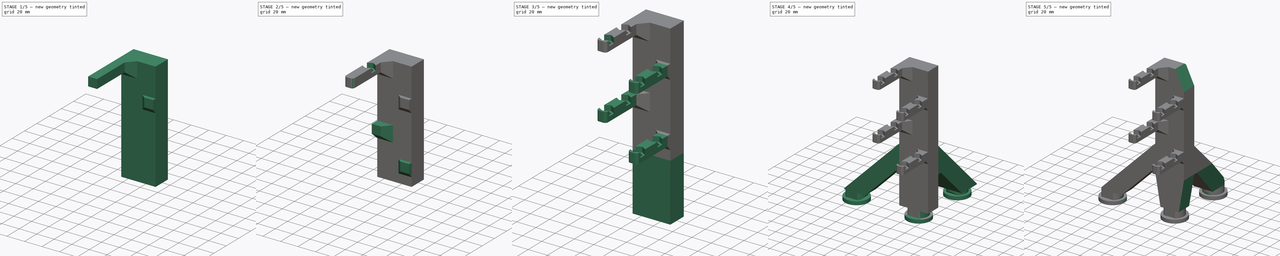
[diagram: build sequence overview — one tinted view per stage of 5, left to right]
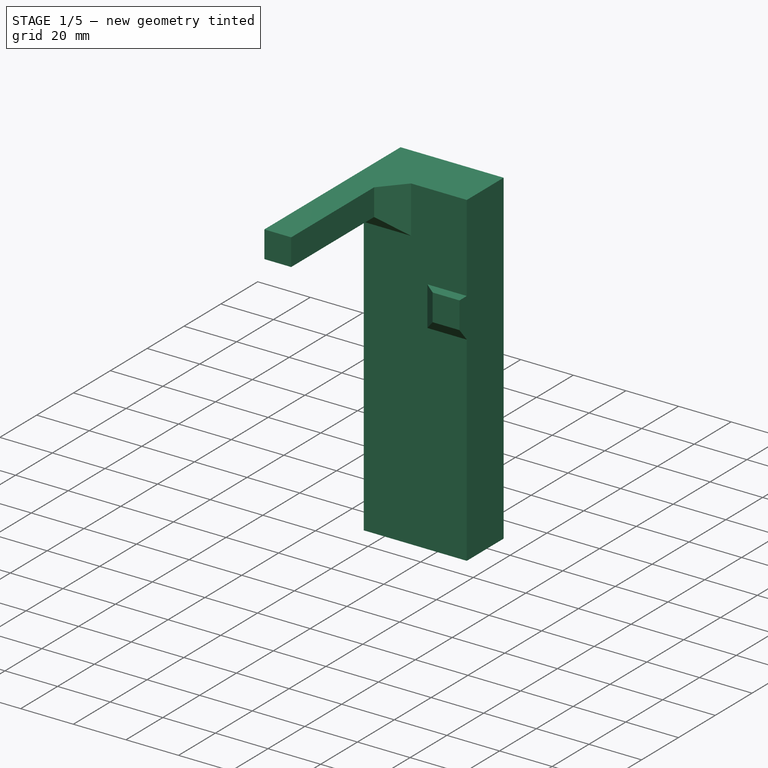
[diagram: stage 1 of 5 — iso view after this stage's code; geometry added in this stage tinted green]
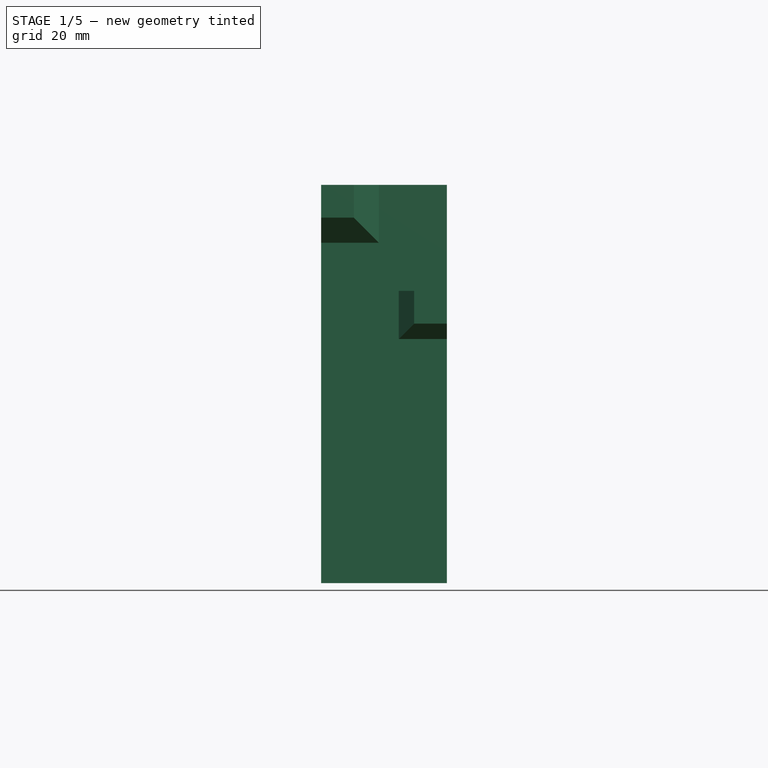
[diagram: stage 1 of 5 — front view after this stage's code; geometry added in this stage tinted green]
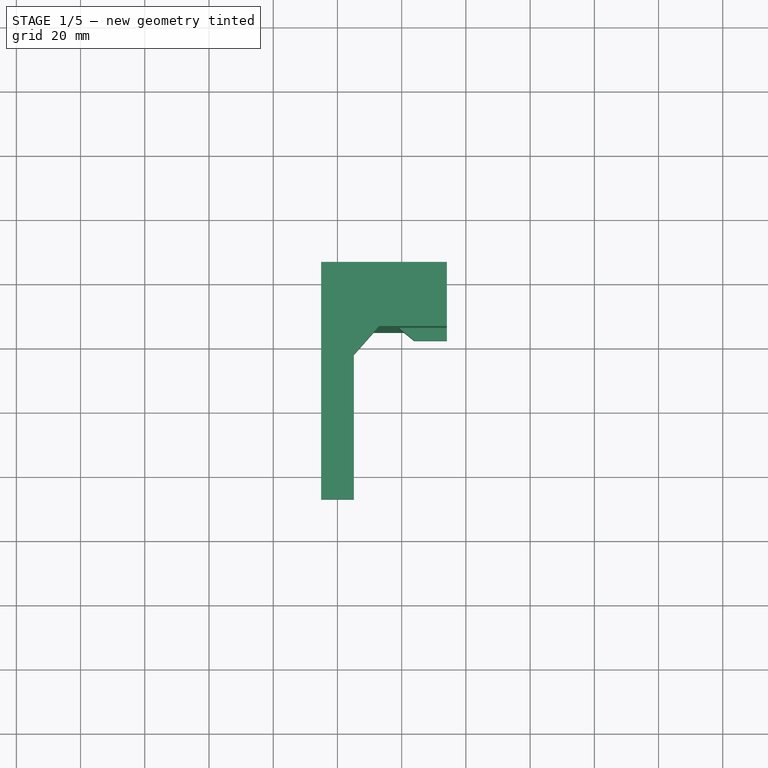
[diagram: stage 1 of 5 — top view after this stage's code; geometry added in this stage tinted green]
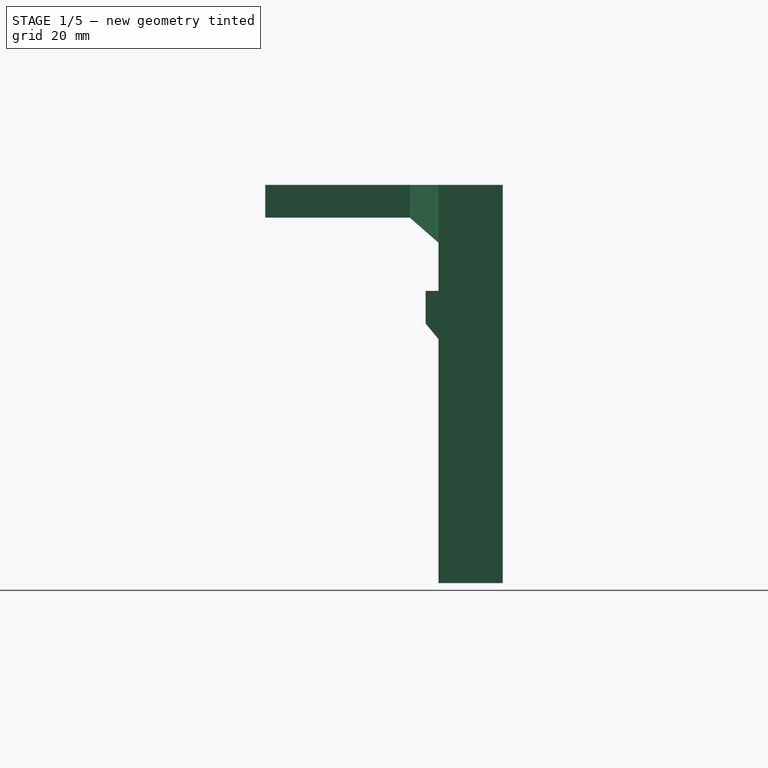
[diagram: stage 1 of 5 — right view after this stage's code; geometry added in this stage tinted green]
FCSTD DOCUMENT  (FreeCAD 0.19R)
Label: quad_clamp_left
License: All rights reserved
LicenseURL: http://en.wikipedia.org/wiki/All_rights_reserved
objects: Sketcher::SketchObject×14, PartDesign::Pad×7, PartDesign::LinearPattern×6, PartDesign::Pocket×4, PartDesign::Plane×2, PartDesign::AdditiveLoft×2, PartDesign::MultiTransform×2, PartDesign::Line×1, PartDesign::Hole×1, PartDesign::Fillet×1, PartDesign::Chamfer×1, PartDesign::Body×1
note: 58 computed .brp shape members not serialized (recipe doc carries the construction recipe); baked Part::Feature solids carry a one-line shape summary decoded from their .brp

FEATURE [Sketcher::SketchObject] Sketch  label="rod_base_sk"
  FullyConstrained = true
  MapMode = 5
  Support = -> [XY_Plane]
  sketch-geometry (6):
    g0: LineSegment StartX=0 StartY=0 StartZ=0 EndX=12.0208 EndY=-12.0208 EndZ=0
    g1: LineSegment StartX=12.0208 StartY=-12.0208 StartZ=0 EndX=28.9914 EndY=4.94975 EndZ=0
    g2: LineSegment StartX=-5.1 StartY=4.94975 StartZ=0 EndX=34.0914 EndY=4.94975 EndZ=0
    g3: LineSegment StartX=34.0914 StartY=4.94975 StartZ=0 EndX=34.0914 EndY=24.9497 EndZ=0
    g4: LineSegment StartX=34.0914 StartY=24.9497 StartZ=0 EndX=-5.1 EndY=24.9497 EndZ=0
    g5: LineSegment StartX=-5.1 StartY=24.9497 StartZ=0 EndX=-5.1 EndY=4.94975 EndZ=0
  constraints (18):
    c: Coincident(g0,g-1)
    c: Coincident(g1,g0)
    c: Angle(g0,g-1) = 0.785398
    c: Perpendicular(g0,g1)
    c: Distance(g0) = 17
    c: Distance(g1) = 24
    c: Coincident(g2,g3)
    c: Coincident(g3,g4)
    c: Coincident(g4,g5)
    c: Coincident(g5,g2)
    c: Horizontal(g2)
    c: Horizontal(g4)
    c: Vertical(g3)
    c: Vertical(g5)
    c: DistanceX(g1,g2) = 5.1
    c: DistanceX(g2,g-1) = 5.1
    c: DistanceY(g5,g5) = 20
    c: PointOnObject(g1,g2)
FEATURE [PartDesign::Pad] Pad  label="rod_base"
  Direction = (1,1,1)
  Length = 124
  Length2 = 100
  Profile = -> Sketch
  Type = 0
FEATURE [Sketcher::SketchObject] Sketch001  label="high_loft_bot_sk"
  ExternalGeometry = -> [Pad]
  FullyConstrained = true
  MapMode = 5
  Placement = pos=(0,4.94975,0) rot=(1,0,0;1.5708rad)
  Support = -> [Pad]
  sketch-geometry (4):
    g0: LineSegment StartX=-5.1 StartY=124 StartZ=0 EndX=12.9 EndY=124 EndZ=0
    g1: LineSegment StartX=12.9 StartY=124 StartZ=0 EndX=12.9 EndY=106 EndZ=0
    g2: LineSegment StartX=12.9 StartY=106 StartZ=0 EndX=-5.1 EndY=106 EndZ=0
    g3: LineSegment StartX=-5.1 StartY=106 StartZ=0 EndX=-5.1 EndY=124 EndZ=0
  constraints (11):
    c: Coincident(g0,g1)
    c: Coincident(g1,g2)
    c: Coincident(g2,g3)
    c: Coincident(g3,g0)
    c: Horizontal(g0)
    c: Horizontal(g2)
    c: Vertical(g1)
    c: Vertical(g3)
    c: Coincident(g0,g-3)
    c: DistanceX(g0,g0) = 18
    c: Equal(g3,g0)
FEATURE [PartDesign::Plane] DatumPlane  label="high_loft_top_plane"
  AttachmentOffset = pos=(0,0,8.94975) rot=(0,0,1;0rad)
  Length = 150.207
  MapMode = 5
  Placement = pos=(0,-4,2e-15) rot=(1,0,0;1.5708rad)
  ResizeMode = 0
  Support = -> [Pad]
  Width = 218.915
  expr: .AttachmentOffset.Base.z = (24 - 17) / sqrt(2) + 4
FEATURE [PartDesign::Plane] DatumPlane001  label="low_loft_top_plane"
  AttachmentOffset = pos=(0,0,4) rot=(0,0,1;0rad)
  Length = 150.207
  MapMode = 5
  Placement = pos=(0,0.949747,9e-16) rot=(1,0,0;1.5708rad)
  ResizeMode = 0
  Support = -> [Pad]
  Width = 218.915
FEATURE [Sketcher::SketchObject] Sketch002  label="low_loft_bot_sk"
  ExternalGeometry = -> [Pad]
  FullyConstrained = true
  MapMode = 5
  Placement = pos=(0,4.94975,0) rot=(1,0,0;1.5708rad)
  Support = -> [Pad]
  sketch-geometry (4):
    g0: LineSegment StartX=19.0914 StartY=91 StartZ=0 EndX=34.0914 EndY=91 EndZ=0
    g1: LineSegment StartX=34.0914 StartY=91 StartZ=0 EndX=34.0914 EndY=76 EndZ=0
    g2: LineSegment StartX=34.0914 StartY=76 StartZ=0 EndX=19.0914 EndY=76 EndZ=0
    g3: LineSegment StartX=19.0914 StartY=76 StartZ=0 EndX=19.0914 EndY=91 EndZ=0
  constraints (12):
    c: Coincident(g0,g1)
    c: Coincident(g1,g2)
    c: Coincident(g2,g3)
    c: Coincident(g3,g0)
    c: Horizontal(g0)
    c: Horizontal(g2)
    c: Vertical(g1)
    c: Vertical(g3)
    c: DistanceX(g0,g0) = 15
    c: Equal(g0,g3)
    c: PointOnObject(g0,g-3)
    c: DistanceY(g0,g-3) = 33
FEATURE [Sketcher::SketchObject] Sketch003  label="high_loft_top_sk"
  ExternalGeometry = -> [Pad]
  FullyConstrained = true
  MapMode = 5
  Placement = pos=(0,-4,2e-15) rot=(1,0,0;1.5708rad)
  Support = -> [DatumPlane]
  sketch-geometry (4):
    g0: LineSegment StartX=-5.1 StartY=124 StartZ=0 EndX=5.1 EndY=124 EndZ=0
    g1: LineSegment StartX=5.1 StartY=124 StartZ=0 EndX=5.1 EndY=113.8 EndZ=0
    g2: LineSegment StartX=5.1 StartY=113.8 StartZ=0 EndX=-5.1 EndY=113.8 EndZ=0
    g3: LineSegment StartX=-5.1 StartY=113.8 StartZ=0 EndX=-5.1 EndY=124 EndZ=0
  constraints (11):
    c: Coincident(g0,g1)
    c: Coincident(g1,g2)
    c: Coincident(g2,g3)
    c: Coincident(g3,g0)
    c: Horizontal(g0)
    c: Horizontal(g2)
    c: Vertical(g1)
    c: Vertical(g3)
    c: Coincident(g0,g-3)
    c: DistanceX(g0,g0) = 10.2
    c: Equal(g3,g0)
FEATURE [Sketcher::SketchObject] Sketch004  label="low_loft_top_sk"
  ExternalGeometry = -> [Pad]
  FullyConstrained = true
  MapMode = 5
  Placement = pos=(0,0.949747,9e-16) rot=(1,0,0;1.5708rad)
  Support = -> [DatumPlane001]
  sketch-geometry (4):
    g0: LineSegment StartX=23.8914 StartY=91 StartZ=0 EndX=34.0914 EndY=91 EndZ=0
    g1: LineSegment StartX=34.0914 StartY=91 StartZ=0 EndX=34.0914 EndY=80.8 EndZ=0
    g2: LineSegment StartX=34.0914 StartY=80.8 StartZ=0 EndX=23.8914 EndY=80.8 EndZ=0
    g3: LineSegment StartX=23.8914 StartY=80.8 StartZ=0 EndX=23.8914 EndY=91 EndZ=0
  constraints (12):
    c: Coincident(g0,g1)
    c: Coincident(g1,g2)
    c: Coincident(g2,g3)
    c: Coincident(g3,g0)
    c: Horizontal(g0)
    c: Horizontal(g2)
    c: Vertical(g1)
    c: Vertical(g3)
    c: DistanceX(g0,g0) = 10.2
    c: Equal(g0,g3)
    c: PointOnObject(g0,g-3)
    c: DistanceY(g0,g-3) = 33
FEATURE [PartDesign::AdditiveLoft] AdditiveLoft  label="high_loft"
  BaseFeature = -> Pad
  Closed = false
  Profile = -> Sketch001
  Ruled = false
  Sections = -> [Sketch003]
FEATURE [PartDesign::AdditiveLoft] AdditiveLoft001  label="low_loft"
  BaseFeature = -> AdditiveLoft
  Closed = false
  Profile = -> Sketch002
  Ruled = false
  Sections = -> [Sketch004]
FEATURE [PartDesign::Line] DatumLine  label="clamp_vector"
  AttacherType = Attacher::AttachEngineLine
  Length = 20
  MapMode = 29
  Placement = pos=(58.1002,6.79028,52.0611) rot=(0.619156,0.733824,0.27955;2.67833rad)
  ResizeMode = 0
  Support = -> [AdditiveLoft001]
FEATURE [PartDesign::Pad] Pad001  label="clamp_base"
  BaseFeature = -> AdditiveLoft001
  Direction = (1,1,1)
  Length = 45
  Length2 = 100
  Profile = -> AdditiveLoft001 [Face15]
  Type = 0
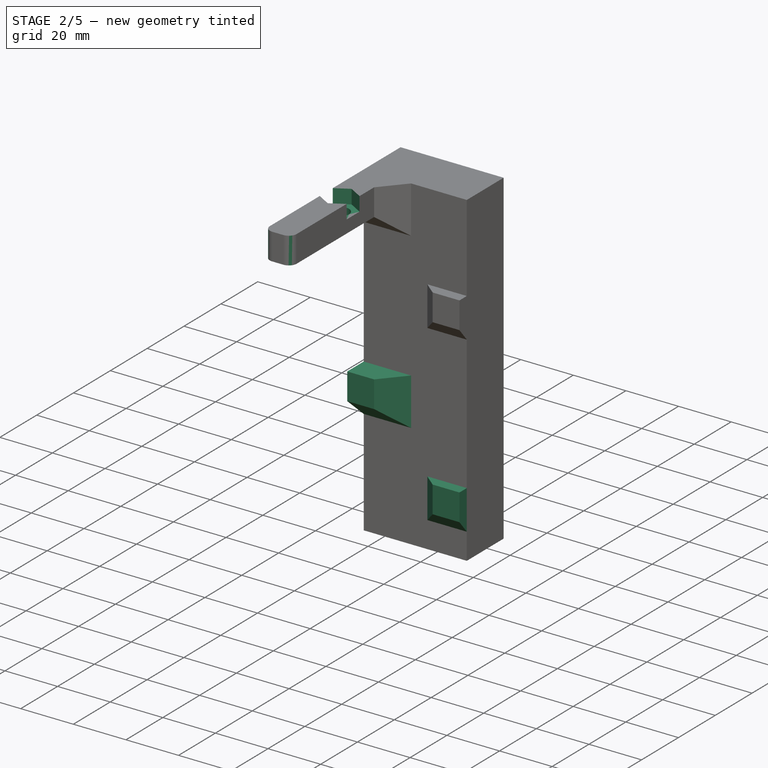
[diagram: stage 2 of 5 — iso view after this stage's code; geometry added in this stage tinted green]
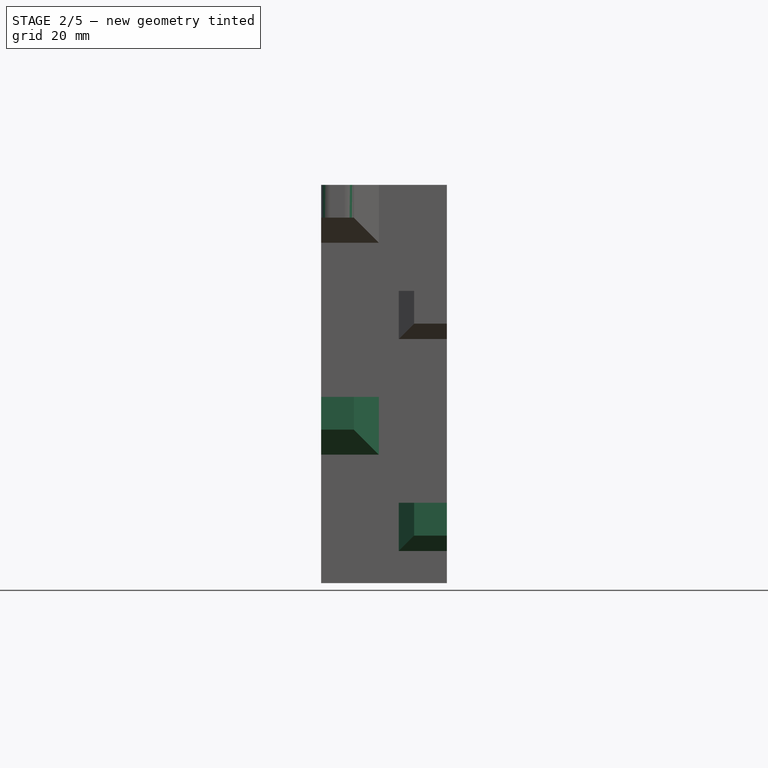
[diagram: stage 2 of 5 — front view after this stage's code; geometry added in this stage tinted green]
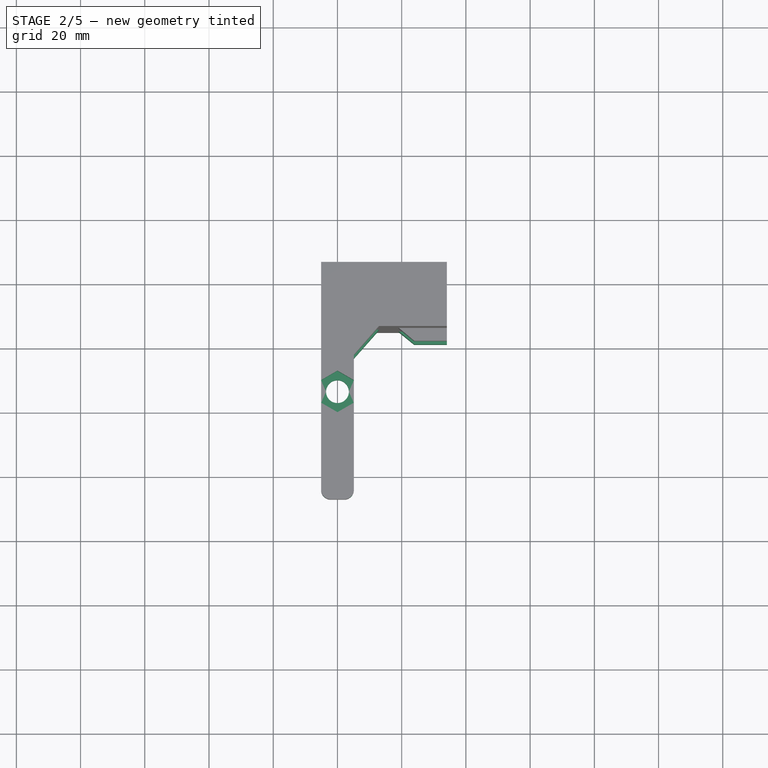
[diagram: stage 2 of 5 — top view after this stage's code; geometry added in this stage tinted green]
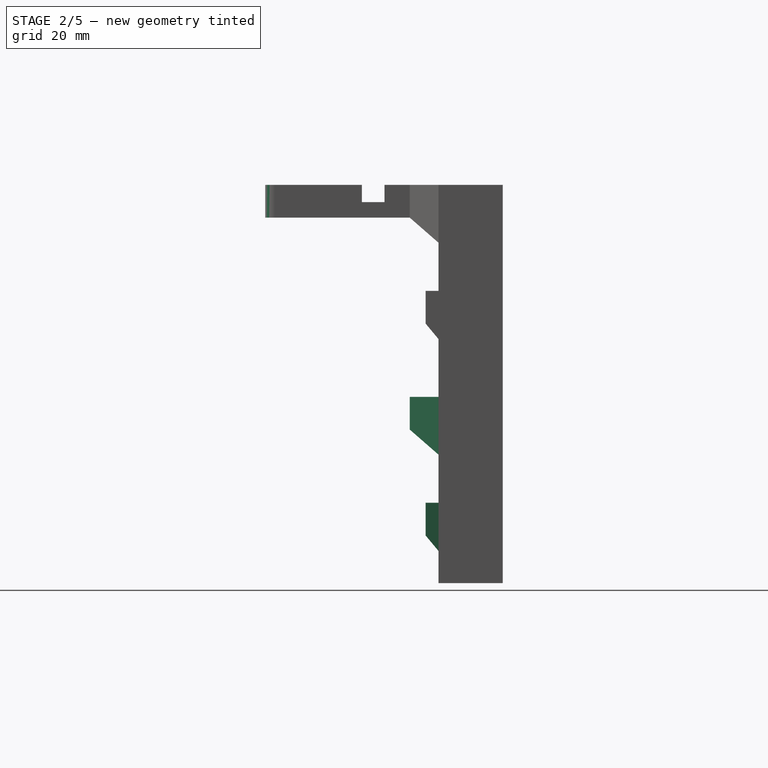
[diagram: stage 2 of 5 — right view after this stage's code; geometry added in this stage tinted green]
FEATURE [Sketcher::SketchObject] Sketch005  label="1on4_hole_sk"
  ExternalGeometry = -> [Pad001]
  FullyConstrained = true
  MapMode = 5
  Placement = pos=(0,2.73e-14,124) rot=(0,0,1;0rad)
  Support = -> [Pad001]
  sketch-geometry (2):
    g0: Circle CenterX=-1.8e-15 CenterY=-15.4 CenterZ=0 NormalX=0 NormalY=0 NormalZ=1 AngleXU=0 Radius=3.35
    g1: GeomPoint X=-1.8e-15 Y=-4 Z=0
  constraints (4):
    c: Symmetric(g-3,g-3,g1)
    c: Vertical(g0,g1)
    c: DistanceY(g0,g1) = 11.4
    c: Diameter(g0) = 6.7
FEATURE [PartDesign::Hole] Hole  label="1on4_hole"
  BaseFeature = -> Pad001
  Depth = 15
  DepthType = 0
  Diameter = 7.1
  DrillForDepth = false
  DrillPoint = 1
  DrillPointAngle = 118
  HoleCutCountersinkAngle = 90
  HoleCutCustomValues = false
  HoleCutDepth = 0
  HoleCutDiameter = 6.1
  HoleCutType = 0
  ModelActualThread = false
  Profile = -> Sketch005
  Tapered = false
  TaperedAngle = 90
  ThreadAngle = 0
  ThreadClass = 0
  ThreadCutOffInner = 0
  ThreadCutOffOuter = 0
  ThreadDirection = 0
  ThreadFit = 0
  ThreadPitch = 0
  ThreadSize = 9
  ThreadType = 3
  Threaded = false
FEATURE [Sketcher::SketchObject] Sketch006  label="1on4_hex_sk"
  ExternalGeometry = -> [Hole]
  FullyConstrained = true
  MapMode = 5
  Placement = pos=(0,2.73e-14,124) rot=(0,0,1;0rad)
  Support = -> [Hole]
  sketch-geometry (7):
    g0: LineSegment StartX=-1.8e-15 StartY=-21.8663 StartZ=0 EndX=5.6 EndY=-18.6332 EndZ=0
    g1: LineSegment StartX=5.6 StartY=-18.6332 StartZ=0 EndX=5.6 EndY=-12.1668 EndZ=0
    g2: LineSegment StartX=5.6 StartY=-12.1668 StartZ=0 EndX=3.56932e-11 EndY=-8.93368 EndZ=0
    g3: LineSegment StartX=3.56932e-11 StartY=-8.93368 StartZ=0 EndX=-5.6 EndY=-12.1668 EndZ=0
    g4: LineSegment StartX=-5.6 StartY=-12.1668 StartZ=0 EndX=-5.6 EndY=-18.6332 EndZ=0
    g5: LineSegment StartX=-5.6 StartY=-18.6332 StartZ=0 EndX=-1.8e-15 EndY=-21.8663 EndZ=0
    g6: Circle CenterX=-1.8e-15 CenterY=-15.4 CenterZ=0 NormalX=0 NormalY=0 NormalZ=1 AngleXU=0 Radius=6.46632
  constraints (16):
    c: Coincident(g0,g1)
    c: Coincident(g1,g2)
    c: Coincident(g2,g3)
    c: Coincident(g3,g4)
    c: Coincident(g4,g5)
    c: Coincident(g5,g0)
    c: Equal(g0, g1-g5) x5
    c: PointOnObject(g0,g6)
    c: PointOnObject(g1,g6)
    c: PointOnObject(g2,g6)
    c: PointOnObject(g3,g6)
    c: PointOnObject(g4,g6)
    c: PointOnObject(g5,g6)
    c: Vertical(g0,g6)
    c: DistanceX(g4,g0) = 11.2
    c: Coincident(g6,g-3)
FEATURE [PartDesign::Pocket] Pocket  label="1on4_hex"
  BaseFeature = -> Hole
  Length = 5.35
  Length2 = 100
  Profile = -> Sketch006
  Type = 0
FEATURE [PartDesign::Fillet] Fillet  label="clamp_tip_fillet"
  Base = -> Pocket [Edge52,Edge38]
  BaseFeature = -> Pocket
  Radius = 3
  SupportTransform = false
FEATURE [PartDesign::LinearPattern] LinearPattern  label="quad_loft"
  BaseFeature = -> Fillet
  Direction = -> Z_Axis
  Length = 66
  Occurrences = 2
  Originals = -> [AdditiveLoft,AdditiveLoft001]
  Reversed = true
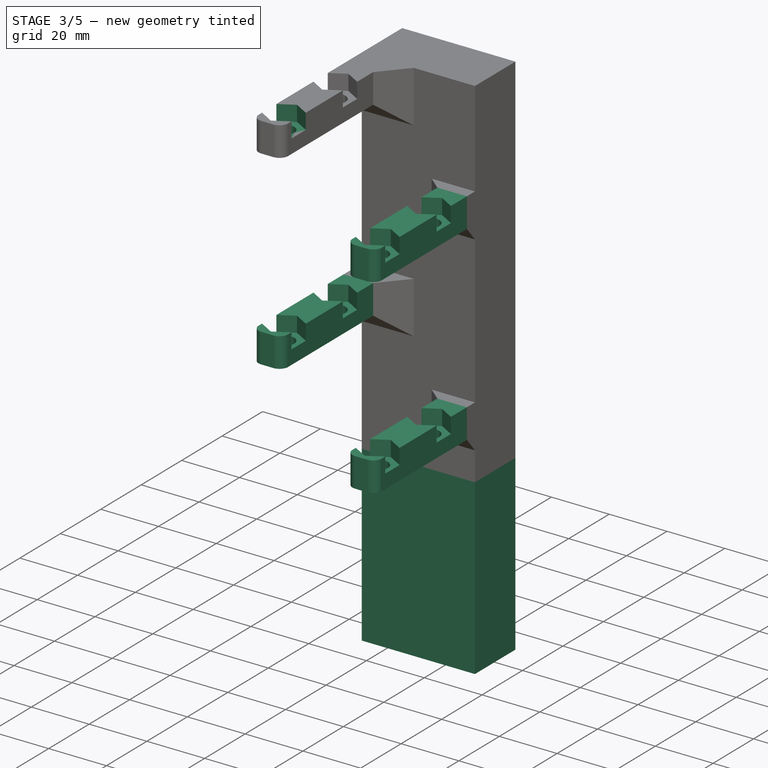
[diagram: stage 3 of 5 — iso view after this stage's code; geometry added in this stage tinted green]
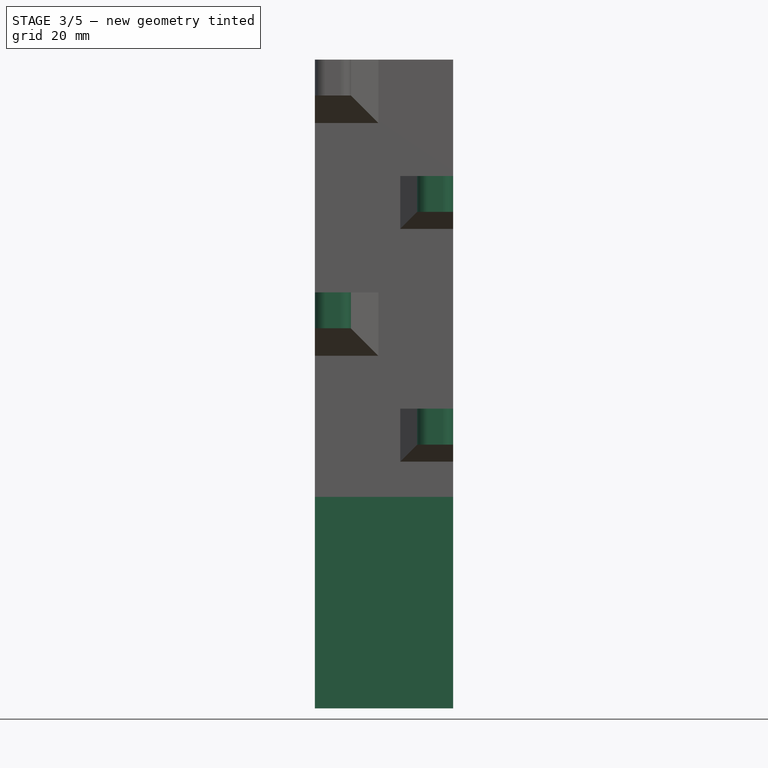
[diagram: stage 3 of 5 — front view after this stage's code; geometry added in this stage tinted green]
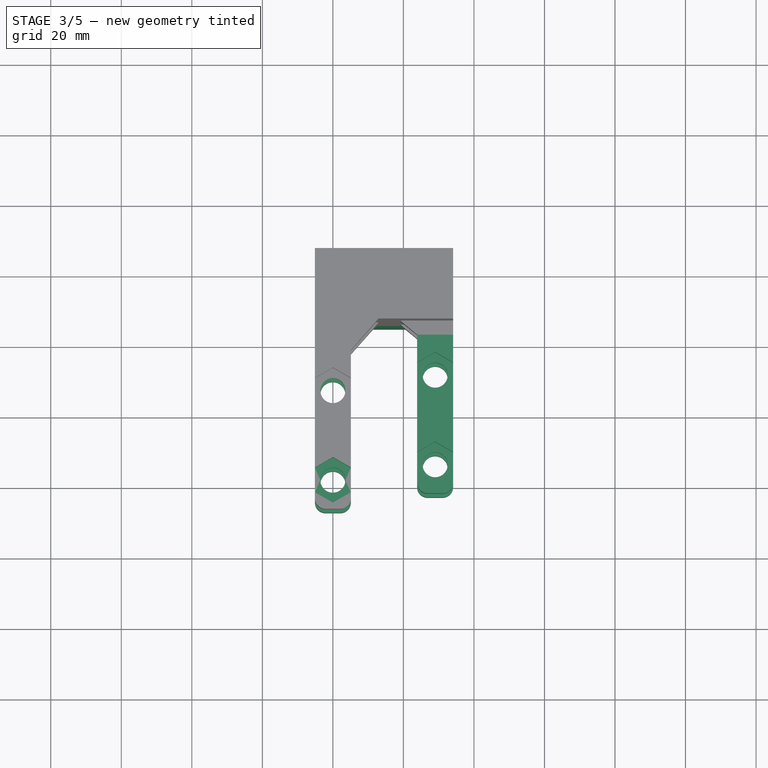
[diagram: stage 3 of 5 — top view after this stage's code; geometry added in this stage tinted green]
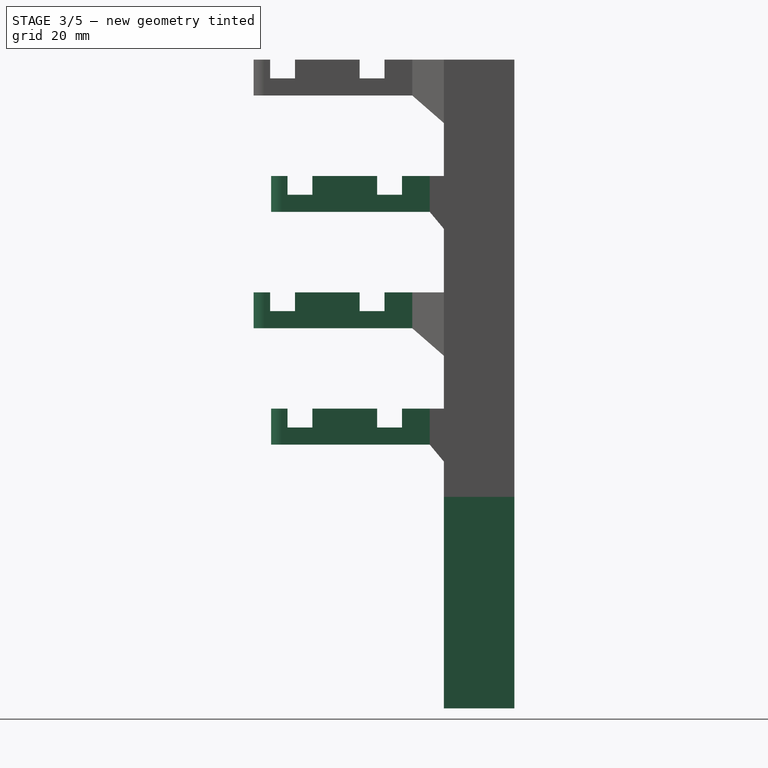
[diagram: stage 3 of 5 — right view after this stage's code; geometry added in this stage tinted green]
FEATURE [PartDesign::LinearPattern] LinearPattern001
  Direction = -> Z_Axis
  Length = 66
  Occurrences = 2
  Reversed = true
FEATURE [PartDesign::LinearPattern] LinearPattern002
  Direction = -> DatumLine
  Length = 44.2041
  Occurrences = 2
  expr: Length = sqrt(17 ^ 2 + 24 ^ 2 + 33 ^ 2)
FEATURE [PartDesign::MultiTransform] MultiTransform  label="quad_clamp_base"
  BaseFeature = -> LinearPattern
  Originals = -> [Pad001,Fillet]
  Transformations = -> [LinearPattern001,LinearPattern002]
FEATURE [PartDesign::LinearPattern] LinearPattern003
  Direction = -> Y_Axis
  Length = 25.4
  Occurrences = 2
  Reversed = true
FEATURE [PartDesign::LinearPattern] LinearPattern004
  Direction = -> Z_Axis
  Length = 66
  Occurrences = 2
  Reversed = true
FEATURE [PartDesign::LinearPattern] LinearPattern005
  Direction = -> DatumLine
  Length = 44.2041
  Occurrences = 2
  expr: Length = sqrt(17 ^ 2 + 24 ^ 2 + 33 ^ 2)
FEATURE [PartDesign::MultiTransform] MultiTransform001  label="quad_dual_1on4_sys"
  BaseFeature = -> MultiTransform
  Originals = -> [Hole,Pocket]
  Transformations = -> [LinearPattern003,LinearPattern004,LinearPattern005]
FEATURE [PartDesign::Pad] Pad002  label="extender"
  BaseFeature = -> MultiTransform001
  Direction = (1,1,1)
  Length = 60
  Length2 = 100
  Profile = -> MultiTransform001 [Face28]
  Type = 0
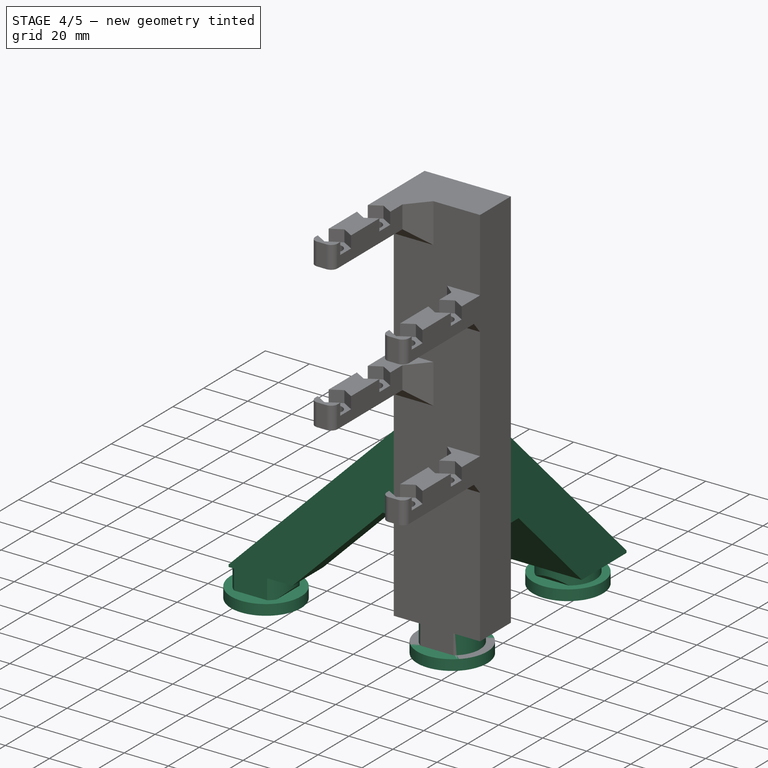
[diagram: stage 4 of 5 — iso view after this stage's code; geometry added in this stage tinted green]
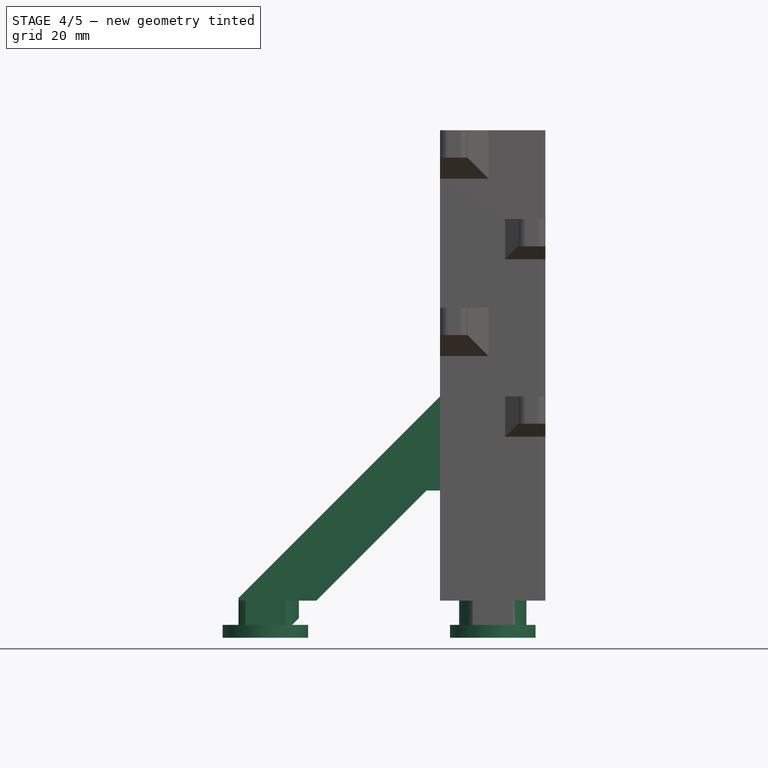
[diagram: stage 4 of 5 — front view after this stage's code; geometry added in this stage tinted green]
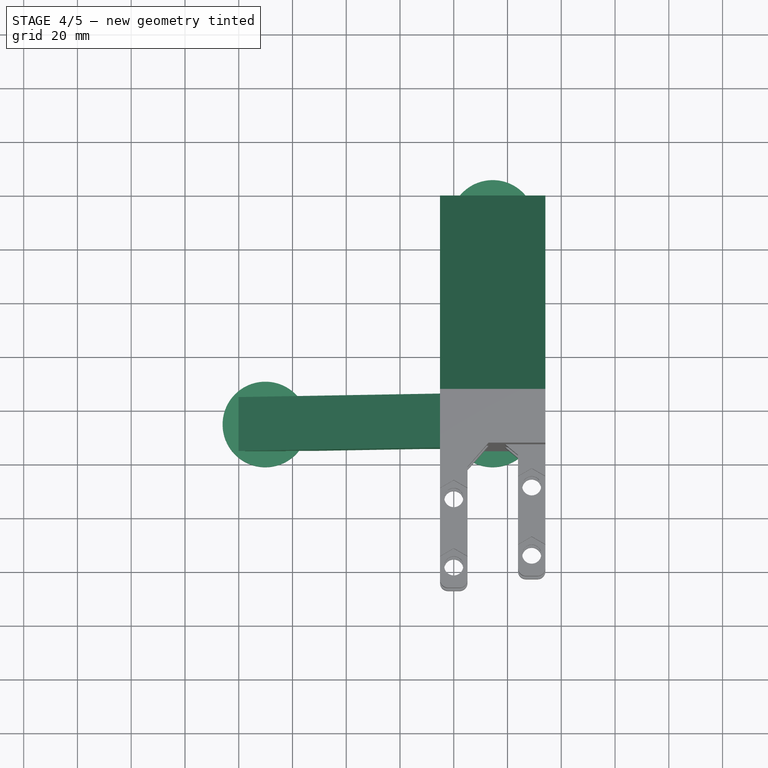
[diagram: stage 4 of 5 — top view after this stage's code; geometry added in this stage tinted green]
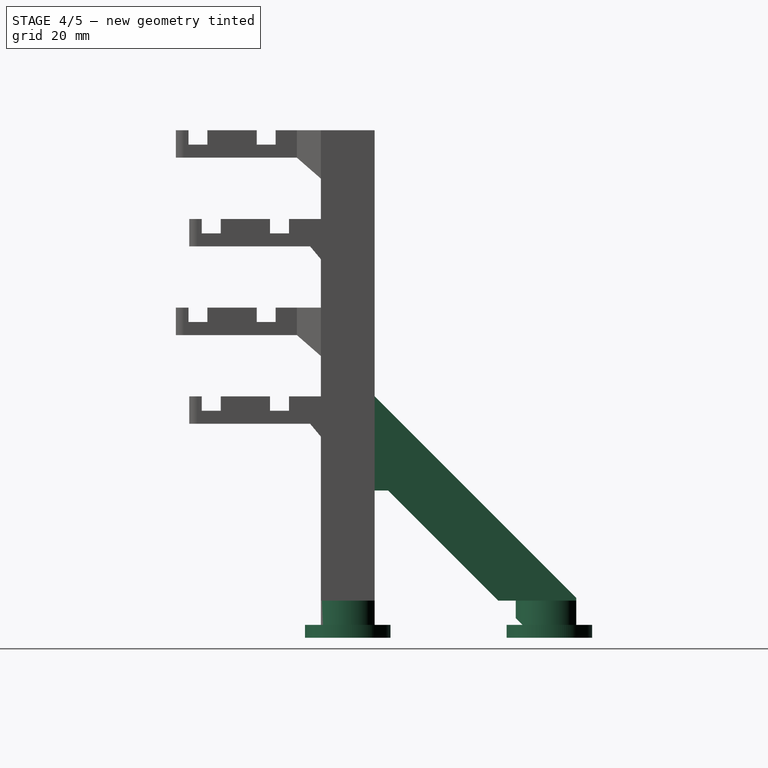
[diagram: stage 4 of 5 — right view after this stage's code; geometry added in this stage tinted green]
FEATURE [Sketcher::SketchObject] Sketch010  label="side_stiffener_1_sk"
  ExternalGeometry = -> [Pad002]
  FullyConstrained = true
  MapMode = 5
  Placement = pos=(0,24.9497,0) rot=(0,0.707107,0.707107;3.14159rad)
  Support = -> [Pad002]
  sketch-geometry (6):
    g0: LineSegment StartX=5.1 StartY=25 StartZ=0 EndX=80.1 EndY=-50 EndZ=0
    g1: LineSegment StartX=80.1 StartY=-50 StartZ=0 EndX=80.1 EndY=-60 EndZ=0
    g2: LineSegment StartX=80.1 StartY=-60 StartZ=0 EndX=60.1 EndY=-60 EndZ=0
    g3: LineSegment StartX=60.1 StartY=-60 StartZ=0 EndX=10.1 EndY=-10 EndZ=0
    g4: LineSegment StartX=10.1 StartY=-10 StartZ=0 EndX=5.1 EndY=-10 EndZ=0
    g5: LineSegment StartX=5.1 StartY=-10 StartZ=0 EndX=5.1 EndY=25 EndZ=0
  constraints (18):
    c: Coincident(g0,g1)
    c: Vertical(g1)
    c: Coincident(g1,g2)
    c: Horizontal(g2)
    c: Coincident(g2,g3)
    c: Coincident(g3,g4)
    c: Horizontal(g4)
    c: Coincident(g4,g5)
    c: Coincident(g5,g0)
    c: Angle(g2,g3) = 2.35619
    c: Parallel(g0,g3)
    c: DistanceX(g4,g4) = 5
    c: DistanceY(g1,g1) = 10
    c: DistanceX(g2,g2) = 20
    c: Vertical(g5)
    c: PointOnObject(g4,g-3)
    c: Horizontal(g2,g-3)
    c: DistanceY(g-3,g4) = 50
FEATURE [PartDesign::Pad] Pad004  label="side_stiffener_1"
  BaseFeature = -> Pad002
  Direction = (1,1,1)
  Length = 10
  Length2 = 100
  Profile = -> Sketch010
  Reversed = true
  Type = 3
  UpToFace = -> Pad002 [Face28]
FEATURE [Sketcher::SketchObject] Sketch011  label="side_stiffener_2_sk"
  ExternalGeometry = -> [Pad002]
  FullyConstrained = true
  MapMode = 5
  Placement = pos=(-5.1,0,0) rot=(0.57735,-0.57735,-0.57735;2.0944rad)
  Support = -> [Pad002]
  sketch-geometry (6):
    g0: LineSegment StartX=-24.9497 StartY=25 StartZ=0 EndX=-99.9497 EndY=-50 EndZ=0
    g1: LineSegment StartX=-99.9497 StartY=-50 StartZ=0 EndX=-99.9497 EndY=-60 EndZ=0
    g2: LineSegment StartX=-99.9497 StartY=-60 StartZ=0 EndX=-79.9497 EndY=-60 EndZ=0
    g3: LineSegment StartX=-79.9497 StartY=-60 StartZ=0 EndX=-29.9497 EndY=-10 EndZ=0
    g4: LineSegment StartX=-29.9497 StartY=-10 StartZ=0 EndX=-24.9497 EndY=-10 EndZ=0
    g5: LineSegment StartX=-24.9497 StartY=-10 StartZ=0 EndX=-24.9497 EndY=25 EndZ=0
  constraints (18):
    c: Coincident(g0,g1)
    c: Vertical(g1)
    c: Coincident(g1,g2)
    c: Horizontal(g2)
    c: Coincident(g2,g3)
    c: Coincident(g3,g4)
    c: Horizontal(g4)
    c: Coincident(g4,g5)
    c: Coincident(g5,g0)
    c: Angle(g3,g2) = 2.35619
    c: Parallel(g0,g3)
    c: DistanceY(g1,g1) = 10
    c: DistanceX(g4,g4) = 5
    c: DistanceX(g2,g2) = 20
    c: Vertical(g5)
    c: PointOnObject(g0,g-3)
    c: Horizontal(g2,g-3)
    c: DistanceY(g-3,g4) = 50
FEATURE [PartDesign::Pad] Pad005  label="side_stiffener_2"
  BaseFeature = -> Pad004
  Direction = (1,1,1)
  Length = 10
  Length2 = 100
  Profile = -> Sketch011
  Reversed = true
  Type = 3
  UpToFace = -> Pad002 [Face42]
FEATURE [Sketcher::SketchObject] Sketch012  label="clamp_clearance_sk"
  ExternalGeometry = -> [Pad005]
  FullyConstrained = true
  MapMode = 5
  Placement = pos=(0,0,-60) rot=(1,0,0;3.14159rad)
  Support = -> [Pad005]
  sketch-geometry (6):
    g0: Circle CenterX=-70.1 CenterY=-14.9497 CenterZ=0 NormalX=0 NormalY=0 NormalZ=1 AngleXU=0 Radius=12.5
    g1: Circle CenterX=14.4957 CenterY=-14.9497 CenterZ=0 NormalX=0 NormalY=0 NormalZ=1 AngleXU=0 Radius=12.5
    g2: Circle CenterX=14.4957 CenterY=-89.9497 CenterZ=0 NormalX=0 NormalY=0 NormalZ=1 AngleXU=0 Radius=12.5
    g3: Circle CenterX=14.4957 CenterY=-14.9497 CenterZ=0 NormalX=0 NormalY=0 NormalZ=1 AngleXU=0 Radius=25
    g4: Circle CenterX=-70.1 CenterY=-14.9497 CenterZ=0 NormalX=0 NormalY=0 NormalZ=1 AngleXU=0 Radius=25
    g5: Circle CenterX=14.4957 CenterY=-89.9497 CenterZ=0 NormalX=0 NormalY=0 NormalZ=1 AngleXU=0 Radius=30
  constraints (12):
    c: Symmetric(g-3,g-4,g0)
    c: Symmetric(g-7,g-8,g1)
    c: Symmetric(g-5,g-6,g2)
    c: Diameter(g1) = 25
    c: Equal(g1,g2)
    c: Equal(g2,g0)
    c: Coincident(g3,g1)
    c: Coincident(g4,g0)
    c: Coincident(g5,g2)
    c: Diameter(g3) = 50
    c: Equal(g3,g4)
    c: Diameter(g5) = 60
FEATURE [PartDesign::Pocket] Pocket001  label="clamp_clearance"
  BaseFeature = -> Pad005
  Length = 9
  Length2 = 100
  Profile = -> Sketch012
  Type = 0
FEATURE [Sketcher::SketchObject] Sketch013  label="clamp_disk_sk"
  ExternalGeometry = -> [Pocket001]
  FullyConstrained = true
  MapMode = 5
  Placement = pos=(0,0,-60) rot=(1,0,0;3.14159rad)
  Support = -> [Pocket001]
  sketch-geometry (3):
    g0: Circle CenterX=-70.1 CenterY=-14.9497 CenterZ=0 NormalX=0 NormalY=0 NormalZ=1 AngleXU=0 Radius=15.9
    g1: Circle CenterX=14.4957 CenterY=-14.9497 CenterZ=0 NormalX=0 NormalY=0 NormalZ=1 AngleXU=0 Radius=15.9
    g2: Circle CenterX=14.4957 CenterY=-89.9497 CenterZ=0 NormalX=0 NormalY=0 NormalZ=1 AngleXU=0 Radius=15.9
  constraints (6):
    c: Coincident(g0,g-4)
    c: Coincident(g1,g-3)
    c: Coincident(g2,g-5)
    c: Diameter(g1) = 31.8
    c: Equal(g0,g1)
    c: Equal(g1,g2)
FEATURE [PartDesign::Pad] Pad006  label="clamp_disk"
  BaseFeature = -> Pocket001
  Direction = (1,1,1)
  Length = 4.8
  Length2 = 100
  Profile = -> Sketch013
  Type = 0
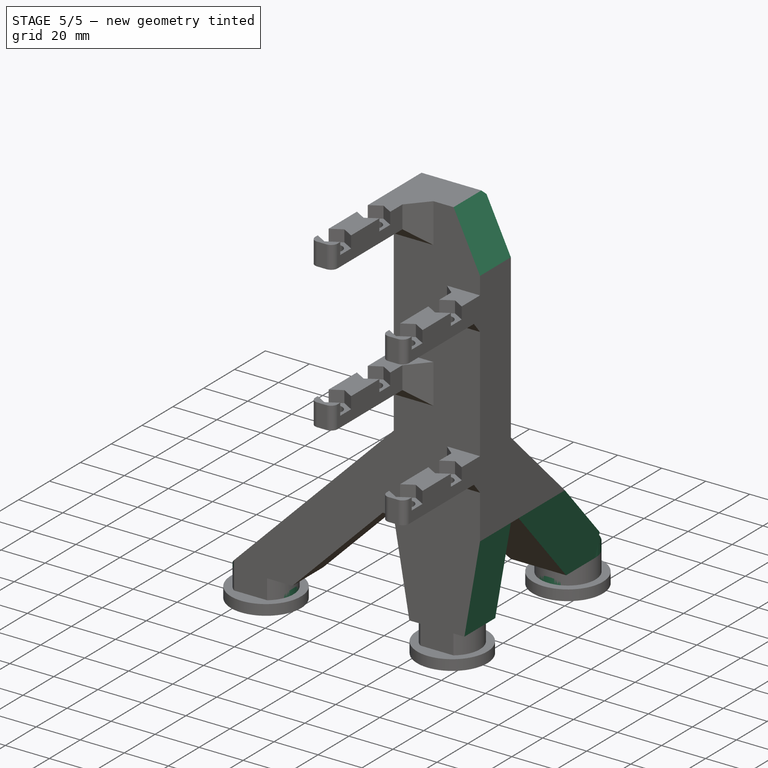
[diagram: stage 5 of 5 — iso view after this stage's code; geometry added in this stage tinted green]
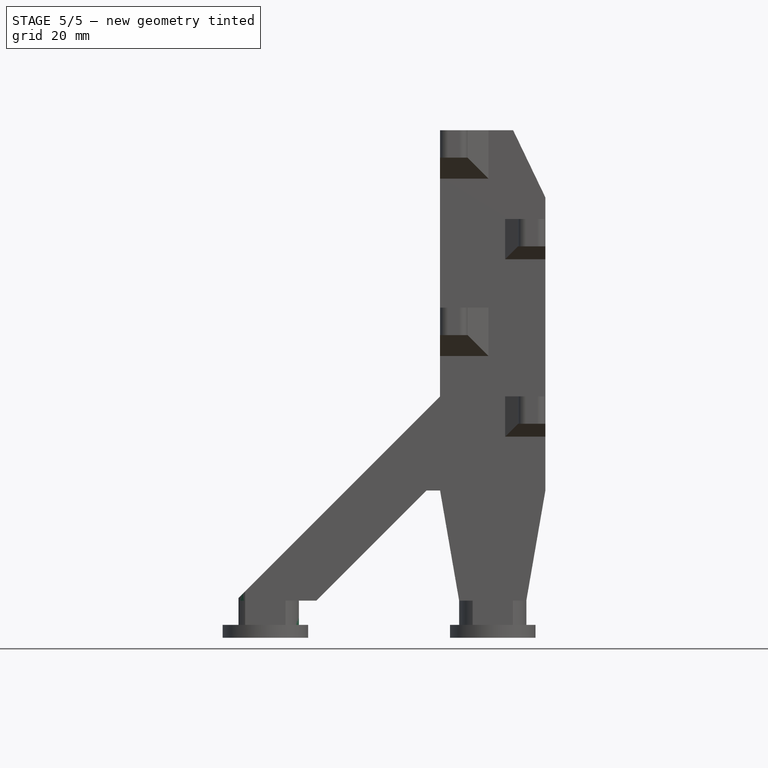
[diagram: stage 5 of 5 — front view after this stage's code; geometry added in this stage tinted green]
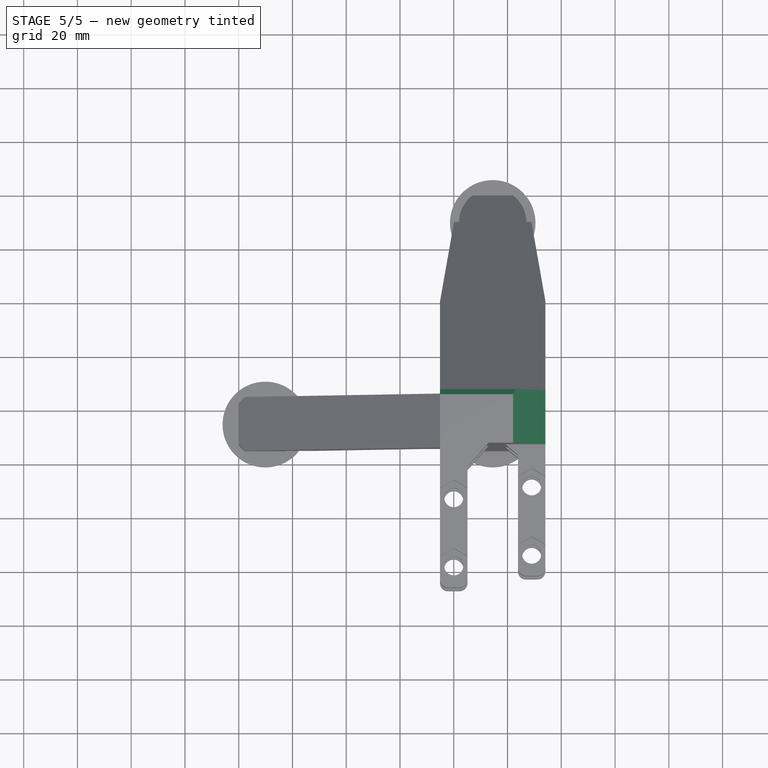
[diagram: stage 5 of 5 — top view after this stage's code; geometry added in this stage tinted green]
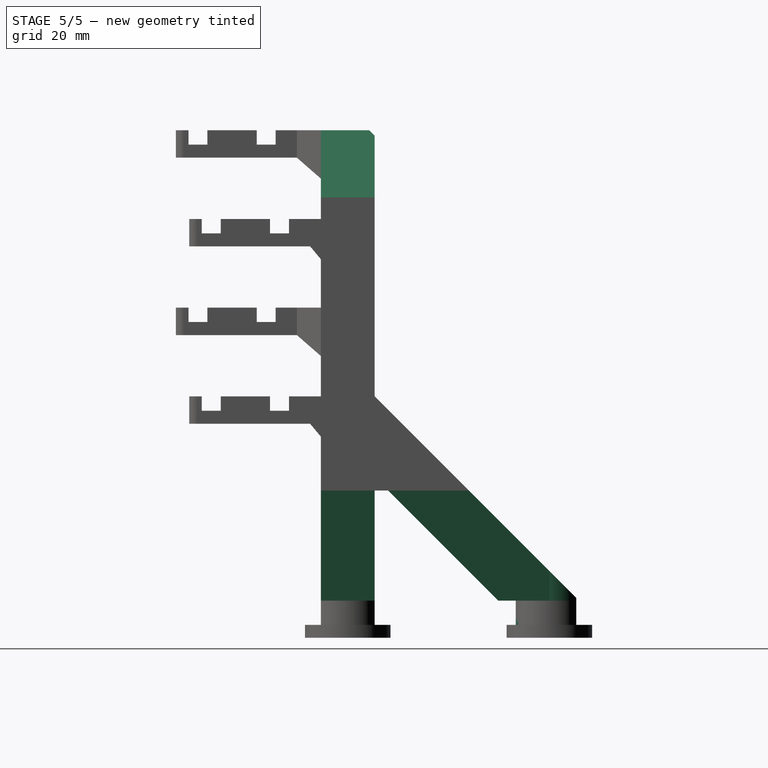
[diagram: stage 5 of 5 — right view after this stage's code; geometry added in this stage tinted green]
FEATURE [Sketcher::SketchObject] Sketch014  label="foot_filling_sk"
  ExternalGeometry = -> [Pad006]
  FullyConstrained = true
  MapMode = 5
  Placement = pos=(0,0,-60) rot=(0,0,1;0rad)
  Support = -> [Pad006]
  sketch-geometry (4):
    g0: ArcOfCircle CenterX=14.4957 CenterY=89.9497 CenterZ=0 NormalX=0 NormalY=0 NormalZ=1 AngleXU=0 Radius=12.5 StartAngle=4.06889 EndAngle=5.35589
    g1: LineSegment StartX=21.9957 StartY=79.9497 StartZ=0 EndX=6.99569 EndY=79.9497 EndZ=0
    g2: ArcOfCircle CenterX=-70.1 CenterY=14.9497 CenterZ=0 NormalX=0 NormalY=0 NormalZ=1 AngleXU=0 Radius=12.5 StartAngle=5.63968 EndAngle=6.92669
    g3: LineSegment StartX=-60.1 StartY=7.44975 StartZ=0 EndX=-60.1 EndY=22.4497 EndZ=0
  constraints (10):
    c: Coincident(g0,g-5)
    c: Coincident(g0,g-6)
    c: PointOnObject(g-6,g0)
    c: Coincident(g1,g0)
    c: Coincident(g1,g0)
    c: Coincident(g2,g-4)
    c: Coincident(g2,g-3)
    c: PointOnObject(g-4,g2)
    c: Coincident(g3,g2)
    c: Coincident(g3,g2)
FEATURE [PartDesign::Pad] Pad007  label="foot_filling"
  BaseFeature = -> Pad006
  Direction = (1,1,1)
  Length = 9
  Length2 = 100
  Profile = -> Sketch014
  Type = 0
FEATURE [Sketcher::SketchObject] Sketch015  label="foot_trimming_sk"
  ExternalGeometry = -> [Pad007]
  FullyConstrained = true
  MapMode = 5
  Placement = pos=(0,0,-60) rot=(0,0,1;0rad)
  Support = -> [Pad007]
  sketch-geometry (8):
    g0: ArcOfCircle CenterX=14.4957 CenterY=89.9497 CenterZ=0 NormalX=0 NormalY=0 NormalZ=1 AngleXU=0 Radius=12.5 StartAngle=0 EndAngle=3.14159
    g1: ArcOfCircle CenterX=-70.1 CenterY=14.9497 CenterZ=0 NormalX=0 NormalY=0 NormalZ=1 AngleXU=0 Radius=12.5 StartAngle=2.2143 EndAngle=4.06889
    g2: ArcOfCircle CenterX=-70.1 CenterY=14.9497 CenterZ=0 NormalX=0 NormalY=0 NormalZ=1 AngleXU=0 Radius=25 StartAngle=2.2143 EndAngle=4.06889
    g3: ArcOfCircle CenterX=14.4957 CenterY=89.9497 CenterZ=0 NormalX=0 NormalY=0 NormalZ=1 AngleXU=0 Radius=25 StartAngle=5e-16 EndAngle=3.14159
    g4: LineSegment StartX=-10.5043 StartY=89.9497 StartZ=0 EndX=1.99569 EndY=89.9497 EndZ=0
    g5: LineSegment StartX=26.9957 StartY=89.9497 StartZ=0 EndX=39.4957 EndY=89.9497 EndZ=0
    g6: LineSegment StartX=-85.1 StartY=34.9497 StartZ=0 EndX=-77.6 EndY=24.9497 EndZ=0
    g7: LineSegment StartX=-77.6 StartY=4.94975 StartZ=0 EndX=-85.1 EndY=-5.05025 EndZ=0
  constraints (24):
    c: PointOnObject(g0,g-4)
    c: PointOnObject(g0,g-3)
    c: Coincident(g1,g-5)
    c: Coincident(g1,g-6)
    c: PointOnObject(g-5,g1)
    c: PointOnObject(g-3,g0)
    c: Horizontal(g0,g0)
    c: Horizontal(g0,g0)
    c: Coincident(g2,g1)
    c: Coincident(g3,g0)
    c: Coincident(g4,g3)
    c: Coincident(g4,g0)
    c: Coincident(g5,g0)
    c: Coincident(g5,g3)
    c: Coincident(g6,g2)
    c: Coincident(g6,g1)
    c: Coincident(g7,g1)
    c: Coincident(g7,g2)
    c: Perpendicular(g1,g7)
    c: Perpendicular(g1,g6)
    c: Perpendicular(g0,g4)
    c: Perpendicular(g0,g5)
    c: Radius(g3) = 25
    c: Radius(g2) = 25
FEATURE [PartDesign::Pocket] Pocket002  label="foot_trimming"
  BaseFeature = -> Pad007
  Length = 20
  Length2 = 100
  Profile = -> Sketch015
  Reversed = true
  Type = 0
FEATURE [Sketcher::SketchObject] Sketch016  label="rod_trimming_sk"
  ExternalGeometry = -> [Pocket002]
  FullyConstrained = true
  MapMode = 5
  Placement = pos=(0,4.94975,0) rot=(1,0,0;1.5708rad)
  Support = -> [Pocket002]
  sketch-geometry (9):
    g0: LineSegment StartX=34.0914 StartY=124 StartZ=0 EndX=22.0914 EndY=124 EndZ=0
    g1: LineSegment StartX=22.0914 StartY=124 StartZ=0 EndX=34.0914 EndY=99 EndZ=0
    g2: LineSegment StartX=34.0914 StartY=99 StartZ=0 EndX=34.0914 EndY=124 EndZ=0
    g3: LineSegment StartX=34.0914 StartY=-51 StartZ=0 EndX=26.9957 EndY=-51 EndZ=0
    g4: LineSegment StartX=26.9957 StartY=-51 StartZ=0 EndX=34.0914 EndY=-10 EndZ=0
    g5: LineSegment StartX=34.0914 StartY=-10 StartZ=0 EndX=34.0914 EndY=-51 EndZ=0
    g6: LineSegment StartX=1.99569 StartY=-51 StartZ=0 EndX=-5.1 EndY=-51 EndZ=0
    g7: LineSegment StartX=-5.1 StartY=-51 StartZ=0 EndX=-5.1 EndY=-10 EndZ=0
    g8: LineSegment StartX=-5.1 StartY=-10 StartZ=0 EndX=1.99569 EndY=-51 EndZ=0
  constraints (21):
    c: Coincident(g-5,g0)
    c: PointOnObject(g0,g-5)
    c: Coincident(g0,g1)
    c: Coincident(g1,g2)
    c: Coincident(g2,g0)
    c: Vertical(g2)
    c: Coincident(g-4,g3)
    c: Coincident(g3,g-6)
    c: Coincident(g3,g4)
    c: Coincident(g4,g5)
    c: Coincident(g5,g3)
    c: Vertical(g5)
    c: Coincident(g-7,g6)
    c: Coincident(g6,g-3)
    c: Coincident(g6,g7)
    c: Coincident(g7,g8)
    c: Coincident(g8,g6)
    c: Horizontal(g4,g7)
    c: DistanceX(g0,g0) = 12
    c: DistanceY(g2,g2) = 25
    c: Coincident(g7,g-8)
FEATURE [PartDesign::Pocket] Pocket003  label="rod_trimming"
  BaseFeature = -> Pocket002
  Length = 0
  Length2 = 100
  Profile = -> Sketch016
  Type = 1
FEATURE [PartDesign::Chamfer] Chamfer
  Angle = 45
  Base = -> Pocket003 [Edge58]
  BaseFeature = -> Pocket003
  ChamferType = 0
  FlipDirection = false
  Size = 2
  Size2 = 1
  SupportTransform = false
FEATURE [PartDesign::Body] Body
  Group = -> [Sketch,Pad,DatumPlane,DatumPlane001,Sketch001,Sketch002,Sketch003,Sketch004,AdditiveLoft,AdditiveLoft001,DatumLine,Pad001,Sketch005,Hole,Sketch006,Pocket,Fillet,LinearPattern,MultiTransform,LinearPattern001,LinearPattern002,MultiTransform001,LinearPattern003,LinearPattern004,LinearPattern005,Pad002,Sketch010,Pad004,Sketch011,Pad005,Sketch012,Pocket001,Sketch013,Pad006,Sketch014,Pad007,Sketch015,+4 more]
  Origin = -> Origin
  Tip = -> Chamfer
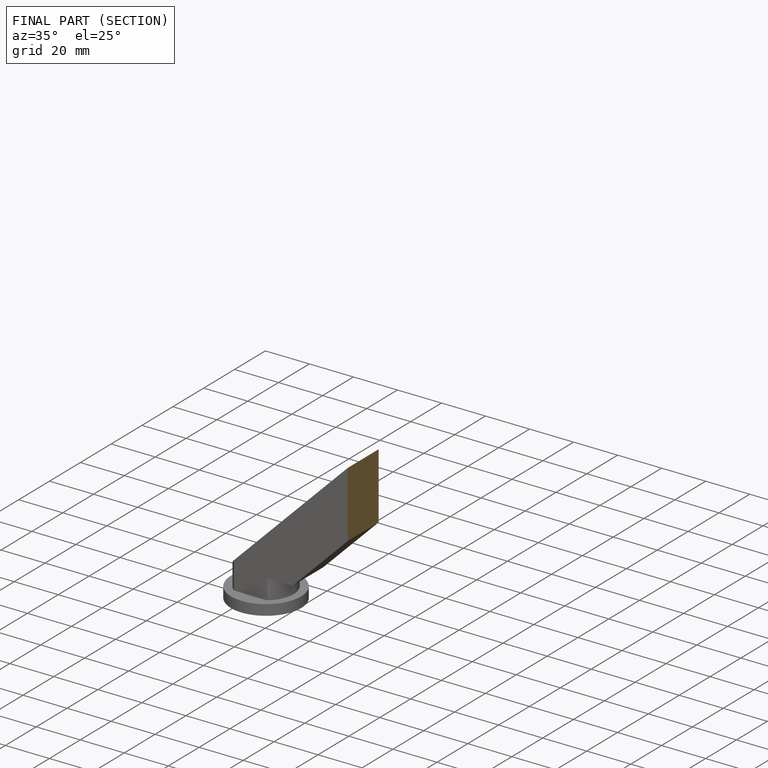
[diagram: finished part — half-section view (interior)]
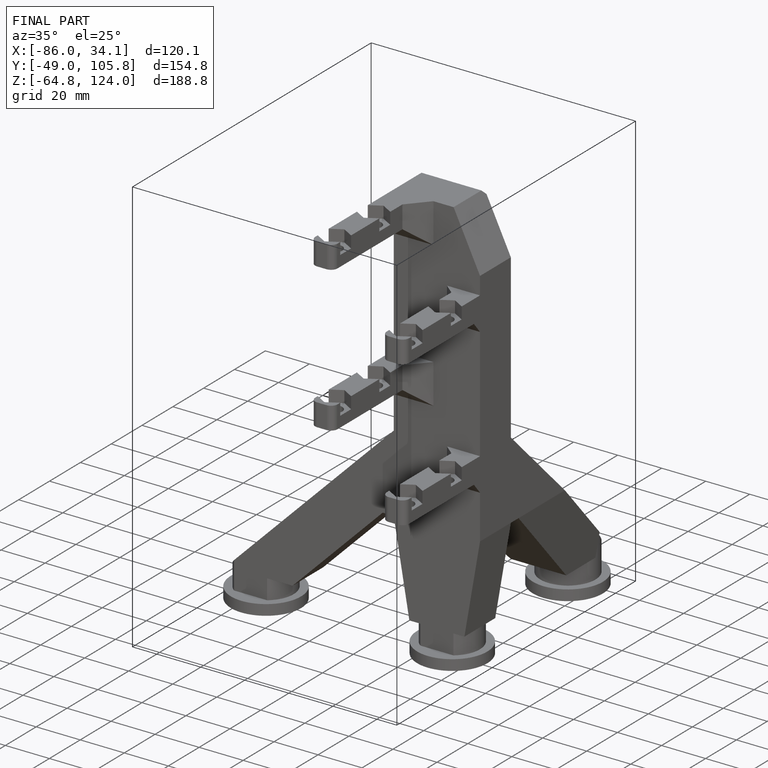
[diagram: finished part — iso view with bounding-box wireframe]
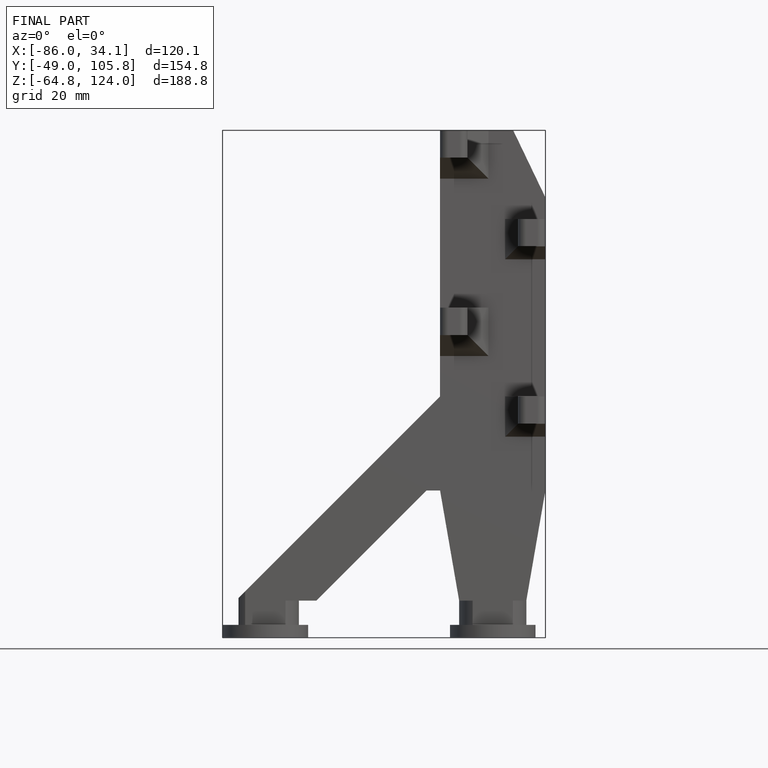
[diagram: finished part — front view with bounding-box wireframe]
